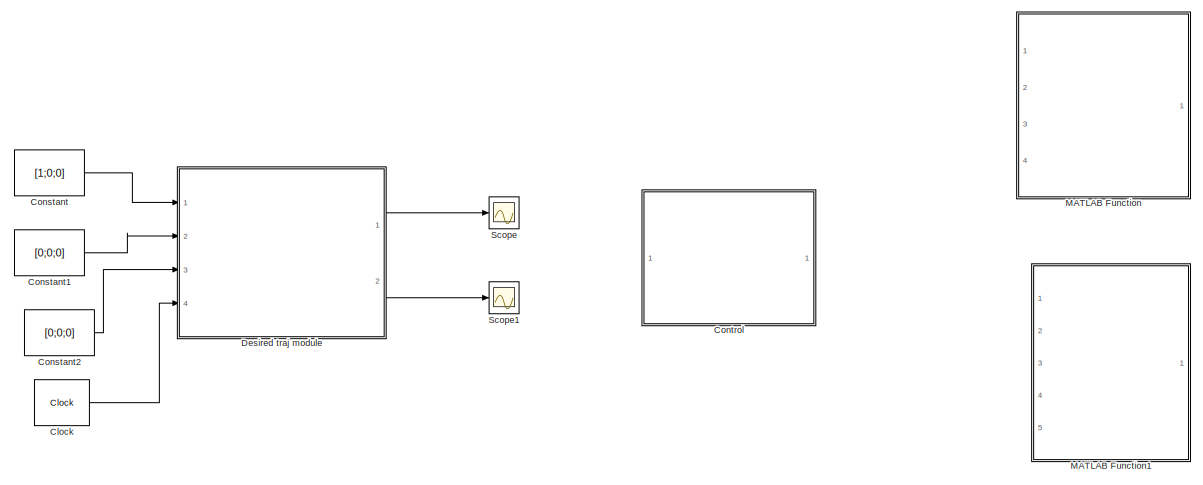
[diagram: root canvas - part 1/2, top center region]
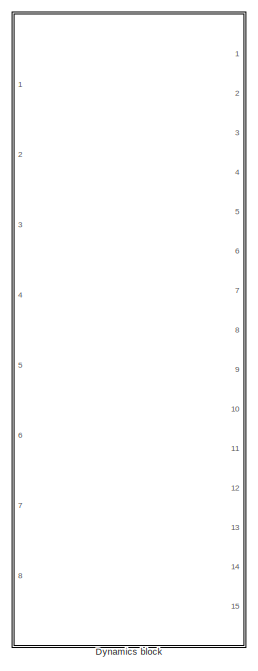
[diagram: root canvas - part 2/2, bottom right region]
MODEL slx_d96b7ec99b3b
KIND model
CONFIG AbsTol = auto
CONFIG EnableMultiTasking = off
CONFIG FixedStep = auto
CONFIG MaxStep = auto
CONFIG MinStep = auto
CONFIG RelTol = 1e-3
CONFIG SampleTimeConstraint = Unconstrained
CONFIG Solver = FixedStepDiscrete
CONFIG SolverName = FixedStepDiscrete
CONFIG StartTime = 0.0
CONFIG StopTime = 10.0
BLOCK [Clock] Clock
  DisplayTime = on
BLOCK [Constant] Constant
  Value = [1;0;0]
  VectorParams1D = off
BLOCK [Constant] Constant1
  Value = [0;0;0]
  VectorParams1D = off
BLOCK [Constant] Constant2
  Value = [0;0;0]
  VectorParams1D = off
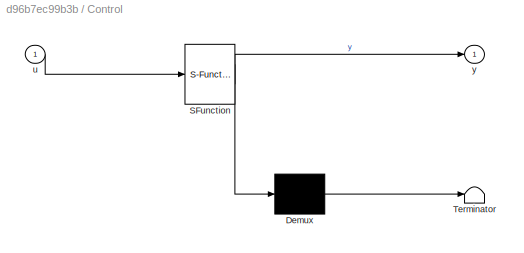
BLOCK [SubSystem] Control
  Commented = on
  ErrorFcn = Stateflow.Translate.translate
  PermitHierarchicalResolution = ExplicitOnly
  Ports = [1, 1]
  RequestExecContextInheritance = off
  SFBlockType = MATLAB Function
  TreatAsAtomicUnit = on
  Variant = off
BLOCK [Demux] Control/ Demux 
  Outputs = 1
  Ports = [1, 1]
BLOCK [S-Function] Control/ SFunction 
  EnableBusSupport = on
  FunctionName = sf_sfun
  PortCounts = [1 2]
  Ports = [1, 2]
  SFcnIsStateOwnerBlock = off
  SFunctionDeploymentMode = off
  Tag = Stateflow S-Function LGVI_AS 2
BLOCK [Terminator] Control/ Terminator 
BLOCK [Inport] Control/u
  IconDisplay = Port number
BLOCK [Outport] Control/y
  IconDisplay = Port number
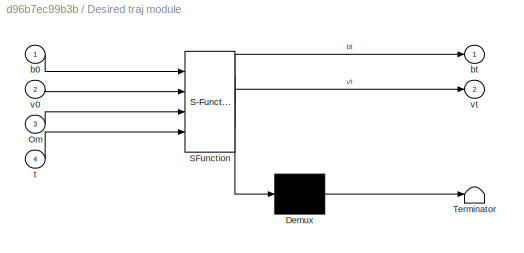
BLOCK [SubSystem] Desired traj module
  ErrorFcn = Stateflow.Translate.translate
  PermitHierarchicalResolution = ExplicitOnly
  Ports = [4, 2]
  RequestExecContextInheritance = off
  SFBlockType = MATLAB Function
  TreatAsAtomicUnit = on
  Variant = off
BLOCK [Demux] Desired traj module/ Demux 
  Outputs = 1
  Ports = [1, 1]
BLOCK [S-Function] Desired traj module/ SFunction 
  EnableBusSupport = on
  FunctionName = sf_sfun
  PortCounts = [4 3]
  Ports = [4, 3]
  SFcnIsStateOwnerBlock = off
  SFunctionDeploymentMode = off
  Tag = Stateflow S-Function LGVI_AS 6
BLOCK [Terminator] Desired traj module/ Terminator 
BLOCK [Inport] Desired traj module/Om
  IconDisplay = Port number
  Port = 3
BLOCK [Inport] Desired traj module/b0
  IconDisplay = Port number
BLOCK [Outport] Desired traj module/bt
  IconDisplay = Port number
BLOCK [Inport] Desired traj module/t
  IconDisplay = Port number
  Port = 4
BLOCK [Inport] Desired traj module/v0
  IconDisplay = Port number
  Port = 2
BLOCK [Outport] Desired traj module/vt
  IconDisplay = Port number
  Port = 2
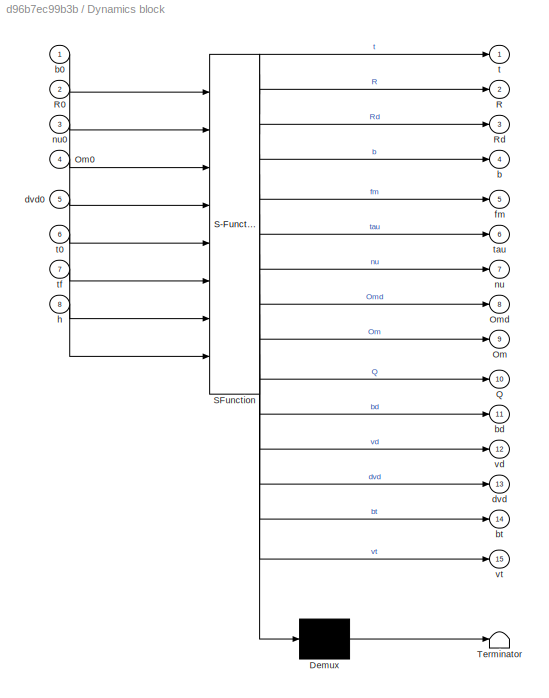
BLOCK [SubSystem] Dynamics block
  Commented = on
  ErrorFcn = Stateflow.Translate.translate
  PermitHierarchicalResolution = ExplicitOnly
  Ports = [8, 15]
  RequestExecContextInheritance = off
  SFBlockType = MATLAB Function
  TreatAsAtomicUnit = on
  Variant = off
BLOCK [Demux] Dynamics block/ Demux 
  Outputs = 1
  Ports = [1, 1]
BLOCK [S-Function] Dynamics block/ SFunction 
  EnableBusSupport = on
  FunctionName = sf_sfun
  PortCounts = [8 16]
  Ports = [8, 16]
  SFcnIsStateOwnerBlock = off
  SFunctionDeploymentMode = off
  Tag = Stateflow S-Function LGVI_AS 4
BLOCK [Terminator] Dynamics block/ Terminator 
BLOCK [Outport] Dynamics block/Om
  IconDisplay = Port number
  Port = 9
BLOCK [Inport] Dynamics block/Om0
  IconDisplay = Port number
  Port = 4
BLOCK [Outport] Dynamics block/Omd
  IconDisplay = Port number
  Port = 8
BLOCK [Outport] Dynamics block/Q
  IconDisplay = Port number
  Port = 10
BLOCK [Outport] Dynamics block/R
  IconDisplay = Port number
  Port = 2
BLOCK [Inport] Dynamics block/R0
  IconDisplay = Port number
  Port = 2
BLOCK [Outport] Dynamics block/Rd
  IconDisplay = Port number
  Port = 3
BLOCK [Outport] Dynamics block/b
  IconDisplay = Port number
  Port = 4
BLOCK [Inport] Dynamics block/b0
  IconDisplay = Port number
BLOCK [Outport] Dynamics block/bd
  IconDisplay = Port number
  Port = 11
BLOCK [Outport] Dynamics block/bt
  IconDisplay = Port number
  Port = 14
BLOCK [Outport] Dynamics block/dvd
  IconDisplay = Port number
  Port = 13
BLOCK [Inport] Dynamics block/dvd0
  IconDisplay = Port number
  Port = 5
BLOCK [Outport] Dynamics block/fm
  IconDisplay = Port number
  Port = 5
BLOCK [Inport] Dynamics block/h
  IconDisplay = Port number
  Port = 8
BLOCK [Outport] Dynamics block/nu
  IconDisplay = Port number
  Port = 7
BLOCK [Inport] Dynamics block/nu0
  IconDisplay = Port number
  Port = 3
BLOCK [Outport] Dynamics block/t
  IconDisplay = Port number
BLOCK [Inport] Dynamics block/t0
  IconDisplay = Port number
  Port = 6
BLOCK [Outport] Dynamics block/tau
  IconDisplay = Port number
  Port = 6
BLOCK [Inport] Dynamics block/tf
  IconDisplay = Port number
  Port = 7
BLOCK [Outport] Dynamics block/vd
  IconDisplay = Port number
  Port = 12
BLOCK [Outport] Dynamics block/vt
  IconDisplay = Port number
  Port = 15
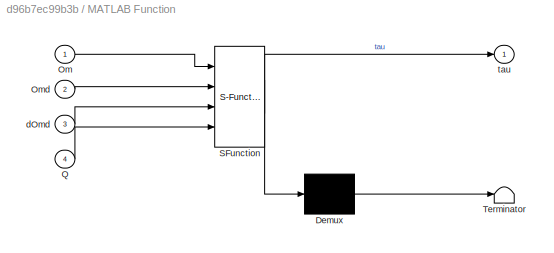
BLOCK [SubSystem] MATLAB Function
  Commented = on
  ErrorFcn = Stateflow.Translate.translate
  PermitHierarchicalResolution = ExplicitOnly
  Ports = [4, 1]
  RequestExecContextInheritance = off
  SFBlockType = MATLAB Function
  TreatAsAtomicUnit = on
  Variant = off
BLOCK [Demux] MATLAB Function/ Demux 
  Outputs = 1
  Ports = [1, 1]
BLOCK [S-Function] MATLAB Function/ SFunction 
  EnableBusSupport = on
  FunctionName = sf_sfun
  PortCounts = [4 2]
  Ports = [4, 2]
  SFcnIsStateOwnerBlock = off
  SFunctionDeploymentMode = off
  Tag = Stateflow S-Function LGVI_AS 1
BLOCK [Terminator] MATLAB Function/ Terminator 
BLOCK [Inport] MATLAB Function/Om
  IconDisplay = Port number
BLOCK [Inport] MATLAB Function/Omd
  IconDisplay = Port number
  Port = 2
BLOCK [Inport] MATLAB Function/Q
  IconDisplay = Port number
  Port = 4
BLOCK [Inport] MATLAB Function/dOmd
  IconDisplay = Port number
  Port = 3
BLOCK [Outport] MATLAB Function/tau
  IconDisplay = Port number
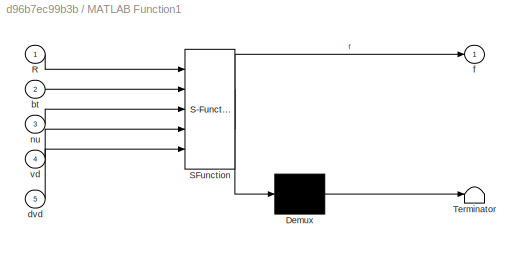
BLOCK [SubSystem] MATLAB Function1
  Commented = on
  ErrorFcn = Stateflow.Translate.translate
  PermitHierarchicalResolution = ExplicitOnly
  Ports = [5, 1]
  RequestExecContextInheritance = off
  SFBlockType = MATLAB Function
  TreatAsAtomicUnit = on
  Variant = off
BLOCK [Demux] MATLAB Function1/ Demux 
  Outputs = 1
  Ports = [1, 1]
BLOCK [S-Function] MATLAB Function1/ SFunction 
  EnableBusSupport = on
  FunctionName = sf_sfun
  PortCounts = [5 2]
  Ports = [5, 2]
  SFcnIsStateOwnerBlock = off
  SFunctionDeploymentMode = off
  Tag = Stateflow S-Function LGVI_AS 3
BLOCK [Terminator] MATLAB Function1/ Terminator 
BLOCK [Inport] MATLAB Function1/R
  IconDisplay = Port number
BLOCK [Inport] MATLAB Function1/bt
  IconDisplay = Port number
  Port = 2
BLOCK [Inport] MATLAB Function1/dvd
  IconDisplay = Port number
  Port = 5
BLOCK [Outport] MATLAB Function1/f
  IconDisplay = Port number
BLOCK [Inport] MATLAB Function1/nu
  IconDisplay = Port number
  Port = 3
BLOCK [Inport] MATLAB Function1/vd
  IconDisplay = Port number
  Port = 4
BLOCK [Scope] Scope
  NumInputPorts = 1
  Ports = [1]
  ScopeSpecificationString = Simulink.scopes.TimeScopeBlockCfg('CurrentConfiguration', extmgr.ConfigurationSet(extmgr.Configuration('Core','General UI',true),extmgr.Configuration('Core','Source UI',true),extmgr.Configuration('Sources','WiredSimulink',true),extmgr.Configuration('Visuals','Time Domain',true,'SerializedDisplays',{struct('MinYLimReal','-0.8','MaxYLimReal','1.2','YLabelReal','','MinYLimMag','0.00000','MaxYLimMag',...<+1374ch>
BLOCK [Scope] Scope1
  NumInputPorts = 1
  Ports = [1]
  ScopeSpecificationString = Simulink.scopes.TimeScopeBlockCfg('CurrentConfiguration', extmgr.ConfigurationSet(extmgr.Configuration('Core','General UI',true),extmgr.Configuration('Core','Source UI',true),extmgr.Configuration('Sources','WiredSimulink',true,'DataLoggingVariableName','ScopeData1'),extmgr.Configuration('Visuals','Time Domain',true,'SerializedDisplays',{struct('MinYLimReal','-1.41372','MaxYLimReal','0.15708','YLab...<+1437ch>
LINE Clock:1 -> Desired traj module:4
LINE Constant1:1 -> Desired traj module:2
LINE Constant2:1 -> Desired traj module:3
LINE Constant:1 -> Desired traj module:1
LINE Desired traj module:1 -> Scope:1
LINE Desired traj module:2 -> Scope1:1
CHART MATLAB Function states=1 transitions=1
  STATE_LABEL 'eML_blk_kernel()'
  STATE_LABEL "SCRIPT:\nfunction tau =attitude_control_tau(Om,Omd,dOmd,Q)\nglobal J p La ki kp e1 e2 e3\n% parameter\nL=La;\na1 = 1.2;\na2 = 1.1;\na3 = 1;\n\nom=Om-Q'*Omd;\n\ns = a1*cross(Q'*e1,e1)+a2*cross(Q'*e2,e2)+a3*cross(Q'*e3,e3);\nH = eye(3,3)-((2*(1-(1/p)))/(s'*s))*(s*s');\nw = a1*cross(e1,cross(om,Q'*e1))+a2*cross(e2,cross(om,Q'*e2))+a3*cross(e3,cross(om,Q'*e3));\nz = s/((s'*s)^(1-(1/p)));\nPsi = om+ki*z;\n\n\n\n\n%dOmd=dO...<+302ch>"
CHART Control states=1 transitions=1
  STATE_LABEL 'eML_blk_kernel()'
  STATE_LABEL 'SCRIPT:\nfunction y = fcn(u)\n\ny = u;\n'
CHART MATLAB Function1 states=1 transitions=1
  STATE_LABEL 'eML_blk_kernel()'
  STATE_LABEL "SCRIPT:\nfunction f =trans_control_f(R,bt,nu,vd,dvd)\n\nglobal L e3 g m P\n% parameter\n\nf = e3'*R'*(m*g*e3+P*bt+L*(R*nu-vd)-m*dvd);\n%f=m*g*e3+P*bt+L*(R*nu-vd)-m*dvd;\n"
CHART Dynamics block states=1 transitions=1
  STATE_LABEL 'eML_blk_kernel()'
  STATE_LABEL "SCRIPT:\nfunction [t,R,Rd,b,fm,tau,nu,Omd,Om,Q,bd,vd,dvd,bt,vt] = LGVI_SE3_UAV(b0,R0,nu0,Om0,dvd0,t0,tf,h)\n\nglobal J M m e3 g \n% UAV parameters \nJ=diag([0.0820,0.0845,0.1377]);         % kgm^2; UAV inertia; 3 x 3 matrix\nm=4.34;                                 % kg, mass of UAV\nM=m*eye(3);                             % \ng=9.81;\ne3=[0;0;1]'; \n\nb(:,1)=b0;\nR(:,:,1)=R0;\nnu(:,1)=[0;0;0];\nOm(:,1)=[0;0;0];...<+3173ch>"
CHART Desired traj module states=1 transitions=1
  STATE_LABEL 'eML_blk_kernel()'
  STATE_LABEL 'SCRIPT:\nfunction [bt,vt] = des(b0,v0,Om,t)\nJ=diag([0.0820,0.0845,0.1377]);         % kgm^2; UAV inertia; 3 x 3 matrix\nm=4.34;                                 % kg, mass of UAV\nM=m*eye(3);                             % \ng=9.81;\ne1=[1;0;0;];\ne2=[0;1;0];\ne3=[0;0;1];\n% %initial inputs\n% t(1)=0;\n% b(:,1)=b0;\n% v(:,1)=v0;\nR0 = expSO3([0;0;0]);\n% R0 = [1 0 0 ; 0 -1 0; 0 0 -1];\nR = zeros(3);\nR(:,:,1)= R0;...<+1531ch>'
